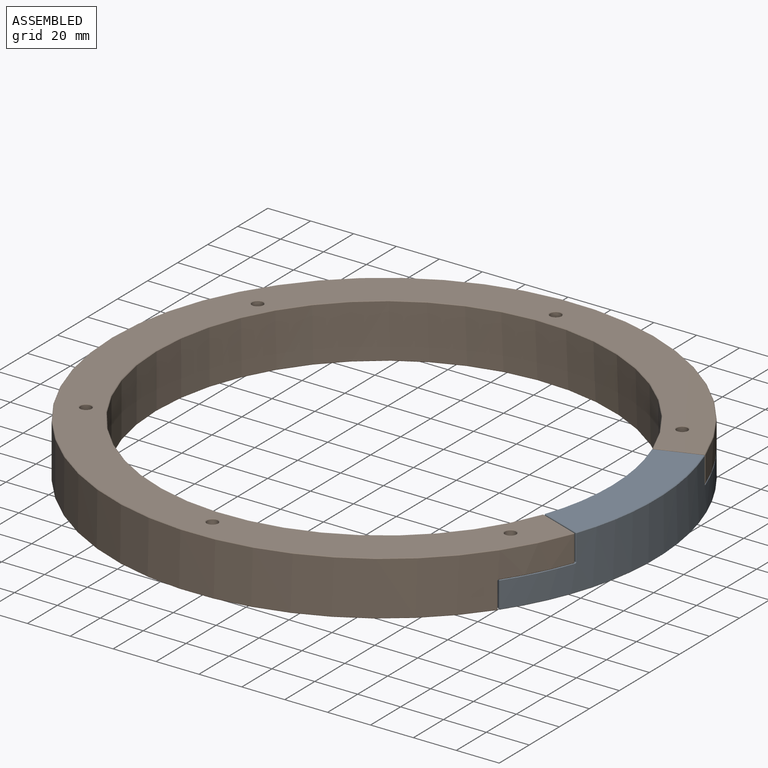
[diagram: assembled view]
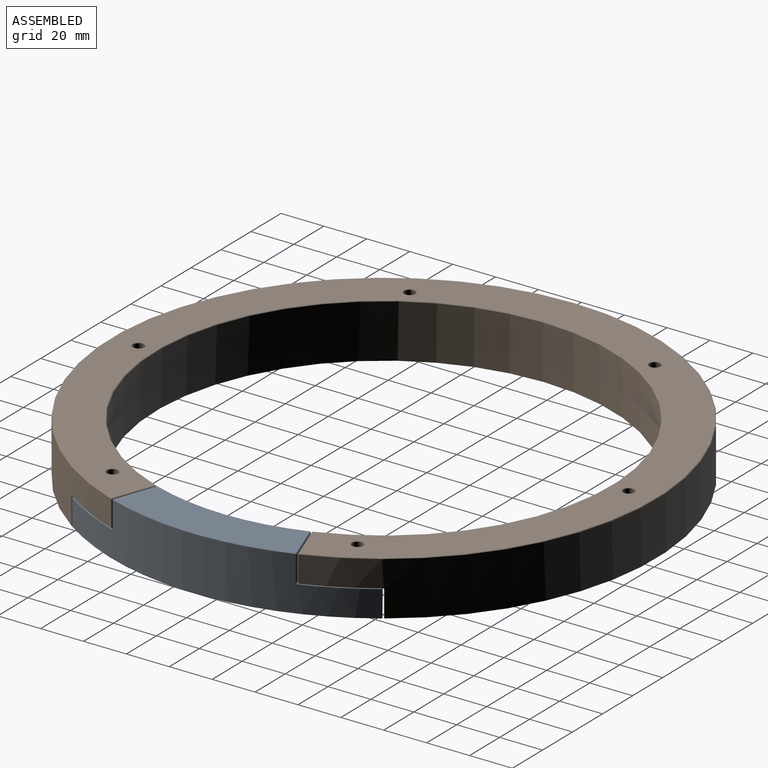
[diagram: assembled view, second angle]
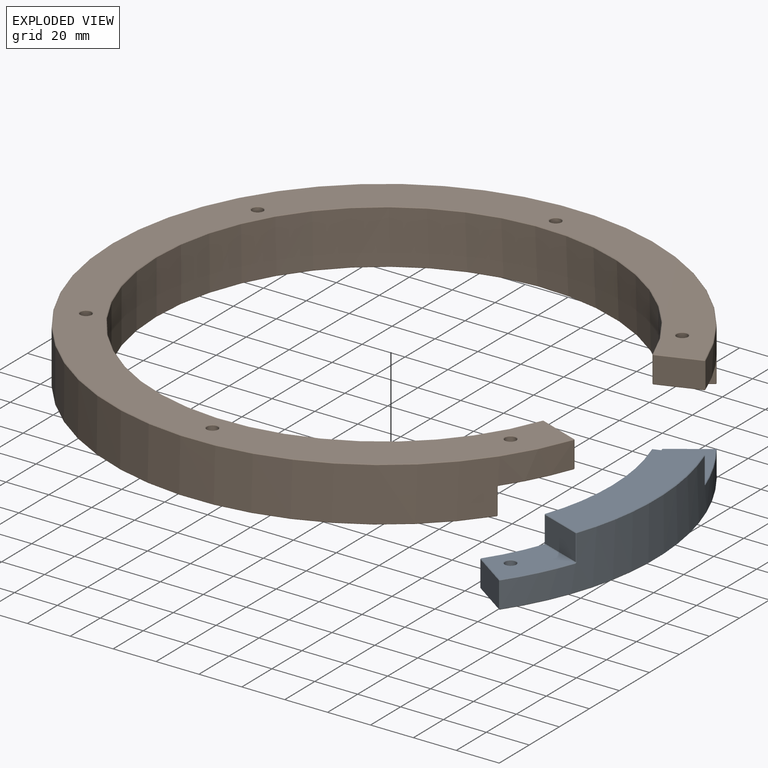
[diagram: exploded view]
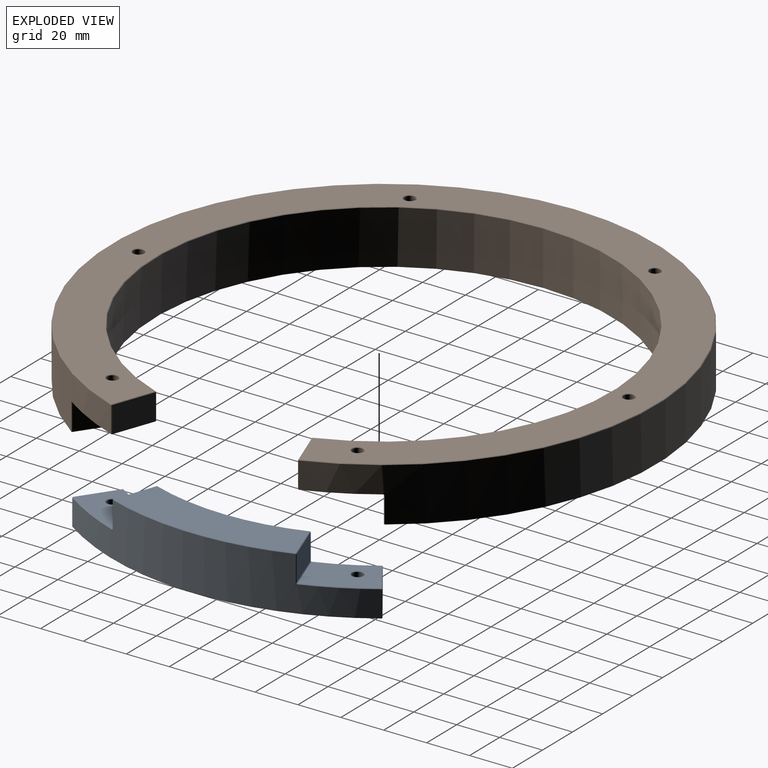
[diagram: exploded view, second angle]
ASSEMBLY  parts=2 mates=3
PART A: 56 faces, bbox 39.7x144.5x25.4 mm
  f0: plane 85.18x26.61mm, normal (0,0,-1), area 1632.1mm2, adj f35,f36,f45,f46
  f1: cylinder r=2.55mm len=12.19mm, axis (0,0,-1), area 195.5mm2, adj f53,f54
  f2: cylinder r=2.55mm len=12.19mm, axis (0,0,-1), area 195.5mm2, adj f52,f55
  f3: cylinder r=106.05mm len=120.47mm, axis (0,0,-1), area 2484.4mm2, adj f19,f24,f29,f30,f34,f40,f45,f48
  f4: cylinder r=127mm len=144.36mm, axis (0,0,-1), area 2977.7mm2, adj f12,f16,f17,f21,f26,f27,f36,f37
  f5: plane 144.07x39.26mm, normal (0,0,1), area 2830.1mm2, adj f17,f18,f28,f29,f54,f55
  f6: plane 16.8x12.19mm, normal (-0.57,0.82,0), area 249.3mm2, adj f27,f28,f39,f40
  f7: plane 16.8x12.19mm, normal (-0.57,-0.82,0), area 249.3mm2, adj f12,f15,f18,f19
  f8: plane 19.24x12.19mm, normal (-0.34,0.94,0), area 249.3mm2, adj f37,f46,f47,f51
  f9: plane 35.88x31.72mm, normal (0,0,-1), area 588.6mm2, adj f38,f39,f47,f48,f53
  f10: plane 19.24x12.19mm, normal (-0.34,-0.94,0), area 249.3mm2, adj f25,f26,f34,f35
  f11: plane 35.88x31.72mm, normal (0,0,-1), area 588.6mm2, adj f15,f16,f24,f25,f52
  f12: plane 12.19x0.35mm, normal (0.18,-0.98,0), area 4.4mm2, adj f4,f7,f13,f14
  f13: plane 0.35x0.25mm, normal (0.15,-0.8,-0.58), area 0.1mm2, adj f12,f15,f16
  f14: plane 0.35x0.25mm, normal (0.15,-0.8,0.58), area 0.1mm2, adj f12,f17,f18
  f15: plane 16.95x11.86mm, normal (-0.4,-0.58,-0.71), area 7.3mm2, adj f7,f11,f13,f20
  f16: cone r=127mm half-angle=45deg, axis (0,0,1), area 11.7mm2, adj f4,f11,f13,f21
  f17: cone r=126.75mm half-angle=45deg, axis (0,0,-1), area 55.1mm2, adj f4,f5,f14,f22
  f18: plane 16.95x11.86mm, normal (-0.4,-0.58,0.71), area 7.3mm2, adj f5,f7,f14,f23
  f19: plane 12.19x0.35mm, normal (-0.98,-0.18,0), area 4.4mm2, adj f3,f7,f20,f23
  f20: plane 0.35x0.25mm, normal (-0.8,-0.15,-0.58), area 0.1mm2, adj f15,f19,f24
  f21: bspline ~0.51x0.48mm, area 0.2mm2, adj f4,f16,f25,f26
  f22: plane 0.35x0.25mm, normal (0.15,0.8,0.58), area 0.1mm2, adj f17,f27,f28
  f23: plane 0.35x0.25mm, normal (-0.8,-0.15,0.58), area 0.1mm2, adj f18,f19,f29
  f24: cone r=106.3mm half-angle=45deg, axis (0,0,-1), area 9.8mm2, adj f3,f11,f20,f30
  f25: plane 19.33x7.15mm, normal (-0.24,-0.67,-0.71), area 7.3mm2, adj f10,f11,f21,f30
  f26: plane 12.19x0.33mm, normal (0.43,-0.9,0), area 4.4mm2, adj f4,f10,f21,f31
  f27: plane 12.19x0.35mm, normal (0.18,0.98,0), area 4.4mm2, adj f4,f6,f22,f32
  f28: plane 16.95x11.86mm, normal (-0.4,0.58,0.71), area 7.3mm2, adj f5,f6,f22,f33
  f29: cone r=106.05mm half-angle=45deg, axis (0,0,1), area 46.1mm2, adj f3,f5,f23,f33
  f30: bspline ~0.56x0.51mm, area 0.2mm2, adj f3,f24,f25,f34
  f31: plane 0.33x0.25mm, normal (0.35,-0.74,-0.58), area 0.1mm2, adj f26,f35,f36
  f32: plane 0.35x0.25mm, normal (0.15,0.8,-0.58), area 0.1mm2, adj f27,f38,f39
  f33: plane 0.35x0.25mm, normal (-0.8,0.15,0.58), area 0.1mm2, adj f28,f29,f40
  f34: plane 12.19x0.32mm, normal (-0.9,-0.43,0), area 4.4mm2, adj f3,f10,f30,f41
  f35: plane 19.33x7.15mm, normal (-0.24,-0.67,-0.71), area 7.3mm2, adj f0,f10,f31,f41
  f36: cone r=127mm half-angle=45deg, axis (0,0,1), area 31.2mm2, adj f0,f4,f31,f42
  f37: plane 12.19x0.33mm, normal (0.43,0.9,0), area 4.4mm2, adj f4,f8,f42,f43
  f38: cone r=127mm half-angle=45deg, axis (0,0,1), area 11.7mm2, adj f4,f9,f32,f43
  f39: plane 16.95x11.86mm, normal (-0.4,0.58,-0.71), area 7.3mm2, adj f6,f9,f32,f44
  f40: plane 12.19x0.35mm, normal (-0.98,0.18,0), area 4.4mm2, adj f3,f6,f33,f44
  f41: plane 0.32x0.25mm, normal (-0.74,-0.35,-0.58), area 0.1mm2, adj f34,f35,f45
  f42: plane 0.33x0.25mm, normal (0.35,0.74,-0.58), area 0.1mm2, adj f36,f37,f46
  f43: bspline ~0.51x0.48mm, area 0.2mm2, adj f4,f37,f38,f47
  f44: plane 0.35x0.25mm, normal (-0.8,0.15,-0.58), area 0.1mm2, adj f39,f40,f48
  f45: cone r=106.3mm half-angle=45deg, axis (0,0,-1), area 26.1mm2, adj f0,f3,f41,f49
  f46: plane 19.33x7.15mm, normal (-0.24,0.67,-0.71), area 7.3mm2, adj f0,f8,f42,f49
  f47: plane 19.33x7.15mm, normal (-0.24,0.67,-0.71), area 7.3mm2, adj f8,f9,f43,f50
  f48: cone r=106.3mm half-angle=45deg, axis (0,0,-1), area 9.8mm2, adj f3,f9,f44,f50
  f49: plane 0.32x0.25mm, normal (-0.74,0.35,-0.58), area 0.1mm2, adj f45,f46,f51
  f50: bspline ~0.56x0.51mm, area 0.2mm2, adj f3,f47,f48,f51
  f51: plane 12.19x0.32mm, normal (-0.9,0.43,0), area 4.4mm2, adj f3,f8,f49,f50
  f52: cone r=2.81mm half-angle=45deg, axis (0,0,-1), area 6mm2, adj f2,f11
  f53: cone r=2.81mm half-angle=45deg, axis (0,0,-1), area 6mm2, adj f1,f9
  f54: cone r=2.81mm half-angle=45deg, axis (0,0,1), area 6mm2, adj f1,f5
  f55: cone r=2.81mm half-angle=45deg, axis (0,0,1), area 6mm2, adj f2,f5
PART B: 68 faces, bbox 246.3x254x25.4 mm
  f0: cylinder r=106.05mm len=212.09mm, axis (0,0,-1), area 14025.2mm2, adj f16,f18,f20,f21,f30,f31,f35,f40
  f1: cylinder r=127mm len=254mm, axis (0,0,-1), area 16799mm2, adj f23,f27,f28,f33,f38,f44,f45,f49
  f2: plane 253.49x245.76mm, normal (0,0,1), area 13147.7mm2, adj f42,f43,f51,f52,f62,f63,f64,f65
  f3: cylinder r=2.55mm len=12.19mm, axis (0,0,-1), area 195.5mm2, adj f56,f62
  f4: cylinder r=2.55mm len=12.19mm, axis (0,0,-1), area 195.5mm2, adj f57,f63
  f5: cylinder r=2.55mm len=24.89mm, axis (0,0,-1), area 399.2mm2, adj f58,f64
  f6: cylinder r=2.55mm len=24.89mm, axis (0,0,-1), area 399.2mm2, adj f59,f65
  f7: cylinder r=2.55mm len=24.89mm, axis (0,0,-1), area 399.2mm2, adj f60,f66
  f8: plane 253.49x230.42mm, normal (0,0,-1), area 11949.7mm2, adj f19,f20,f28,f29,f58,f59,f60,f61
  f9: cylinder r=2.55mm len=24.89mm, axis (0,0,-1), area 399.2mm2, adj f61,f67
  f10: plane 19.21x12.19mm, normal (0.34,0.94,0), area 249.3mm2, adj f31,f32,f43,f44
  f11: plane 19.21x12.19mm, normal (0.34,-0.94,0), area 249.3mm2, adj f41,f50,f51,f55
  f12: plane 35.9x31.79mm, normal (0,0,-1), area 588.6mm2, adj f39,f40,f49,f50,f56
  f13: plane 16.75x12.19mm, normal (0.57,-0.82,0), area 249.3mm2, adj f29,f30,f38,f39
  f14: plane 16.75x12.19mm, normal (0.57,0.82,0), area 249.3mm2, adj f16,f19,f22,f23
  f15: plane 35.9x31.79mm, normal (0,0,-1), area 588.6mm2, adj f21,f22,f32,f33,f57
  f16: plane 12.19x0.35mm, normal (-0.17,0.99,0), area 4.4mm2, adj f0,f14,f17,f18
  f17: plane 0.35x0.25mm, normal (-0.14,0.8,-0.58), area 0.1mm2, adj f16,f19,f20
  f18: bspline ~0.51x0.5mm, area 0.2mm2, adj f0,f16,f21,f22
  f19: plane 16.9x11.94mm, normal (0.41,0.58,-0.71), area 7.3mm2, adj f8,f14,f17,f24
  f20: cone r=106.3mm half-angle=45deg, axis (0,0,-1), area 192.9mm2, adj f0,f8,f17,f25
  f21: cone r=106.3mm half-angle=45deg, axis (0,0,-1), area 9.8mm2, adj f0,f15,f18,f26
  f22: plane 16.9x11.94mm, normal (0.41,0.58,-0.71), area 7.3mm2, adj f14,f15,f18,f27
  f23: plane 12.19x0.35mm, normal (0.98,0.17,0), area 4.4mm2, adj f1,f14,f24,f27
  f24: plane 0.35x0.25mm, normal (0.8,0.14,-0.58), area 0.1mm2, adj f19,f23,f28
  f25: plane 0.35x0.25mm, normal (-0.14,-0.8,-0.58), area 0.1mm2, adj f20,f29,f30
  f26: plane 0.33x0.25mm, normal (-0.34,0.74,-0.58), area 0.1mm2, adj f21,f31,f32
  f27: bspline ~0.56x0.51mm, area 0.2mm2, adj f1,f22,f23,f33
  f28: cone r=127mm half-angle=45deg, axis (0,0,1), area 230.5mm2, adj f1,f8,f24,f34
  f29: plane 16.9x11.94mm, normal (0.41,-0.58,-0.71), area 7.3mm2, adj f8,f13,f25,f34
  f30: plane 12.19x0.35mm, normal (-0.17,-0.99,0), area 4.4mm2, adj f0,f13,f25,f35
  f31: plane 12.19x0.33mm, normal (-0.42,0.91,0), area 4.4mm2, adj f0,f10,f26,f36
  f32: plane 19.3x7.23mm, normal (0.24,0.66,-0.71), area 7.3mm2, adj f10,f15,f26,f37
  f33: cone r=127mm half-angle=45deg, axis (0,0,1), area 11.7mm2, adj f1,f15,f27,f37
  f34: plane 0.35x0.25mm, normal (0.8,-0.14,-0.58), area 0.1mm2, adj f28,f29,f38
  f35: bspline ~0.51x0.5mm, area 0.2mm2, adj f0,f30,f39,f40
  f36: plane 0.33x0.25mm, normal (-0.34,0.74,0.58), area 0.1mm2, adj f31,f42,f43
  f37: plane 0.33x0.25mm, normal (0.74,0.34,-0.58), area 0.1mm2, adj f32,f33,f44
  f38: plane 12.19x0.35mm, normal (0.98,-0.17,0), area 4.4mm2, adj f1,f13,f34,f45
  f39: plane 16.9x11.94mm, normal (0.41,-0.58,-0.71), area 7.3mm2, adj f12,f13,f35,f45
  f40: cone r=106.3mm half-angle=45deg, axis (0,0,-1), area 9.8mm2, adj f0,f12,f35,f46
  f41: plane 12.19x0.33mm, normal (-0.42,-0.91,0), area 4.4mm2, adj f0,f11,f46,f47
  f42: cone r=106.05mm half-angle=45deg, axis (0,0,1), area 212.8mm2, adj f0,f2,f36,f47
  f43: plane 19.3x7.23mm, normal (0.24,0.66,0.71), area 7.3mm2, adj f2,f10,f36,f48
  f44: plane 12.19x0.33mm, normal (0.91,0.42,0), area 4.4mm2, adj f1,f10,f37,f48
  f45: bspline ~0.57x0.51mm, area 0.2mm2, adj f1,f38,f39,f49
  f46: plane 0.33x0.25mm, normal (-0.34,-0.74,-0.58), area 0.1mm2, adj f40,f41,f50
  f47: plane 0.33x0.25mm, normal (-0.34,-0.74,0.58), area 0.1mm2, adj f41,f42,f51
  f48: plane 0.33x0.25mm, normal (0.74,0.34,0.58), area 0.1mm2, adj f43,f44,f52
  f49: cone r=127mm half-angle=45deg, axis (0,0,1), area 11.7mm2, adj f1,f12,f45,f53
  f50: plane 19.3x7.23mm, normal (0.24,-0.66,-0.71), area 7.3mm2, adj f11,f12,f46,f53
  f51: plane 19.3x7.23mm, normal (0.24,-0.66,0.71), area 7.3mm2, adj f2,f11,f47,f54
  f52: cone r=126.75mm half-angle=45deg, axis (0,0,-1), area 254.4mm2, adj f1,f2,f48,f54
  f53: plane 0.33x0.25mm, normal (0.74,-0.34,-0.58), area 0.1mm2, adj f49,f50,f55
  f54: plane 0.33x0.25mm, normal (0.74,-0.34,0.58), area 0.1mm2, adj f51,f52,f55
  f55: plane 12.19x0.33mm, normal (0.91,-0.42,0), area 4.4mm2, adj f1,f11,f53,f54
  f56: cone r=2.81mm half-angle=45deg, axis (0,0,-1), area 6mm2, adj f3,f12
  f57: cone r=2.81mm half-angle=45deg, axis (0,0,-1), area 6mm2, adj f4,f15
  f58: cone r=2.55mm half-angle=45deg, axis (0,0,-1), area 6mm2, adj f5,f8
  f59: cone r=2.55mm half-angle=45deg, axis (0,0,-1), area 6mm2, adj f6,f8
  f60: cone r=2.55mm half-angle=45deg, axis (0,0,-1), area 6mm2, adj f7,f8
  f61: cone r=2.55mm half-angle=45deg, axis (0,0,-1), area 6mm2, adj f8,f9
  f62: cone r=2.81mm half-angle=45deg, axis (0,0,1), area 6mm2, adj f2,f3
  f63: cone r=2.81mm half-angle=45deg, axis (0,0,1), area 6mm2, adj f2,f4
  f64: cone r=2.81mm half-angle=45deg, axis (0,0,1), area 6mm2, adj f2,f5
  f65: cone r=2.81mm half-angle=45deg, axis (0,0,1), area 6mm2, adj f2,f6
  f66: cone r=2.81mm half-angle=45deg, axis (0,0,1), area 6mm2, adj f2,f7
  f67: cone r=2.81mm half-angle=45deg, axis (0,0,1), area 6mm2, adj f2,f9
PLACE A rot(axis=(1,0,0),180deg) t=(-57.01,16.16,17.99)mm
PLACE B t=(-57.01,16.16,-7.41)mm
MATE cylindrical A.f3 <-> B.f0  axis (0,0,1) through (-57.01,16.16,5.29)mm
MATE planar A.f9 <-> B.f15  axis (0,0,1) through (46.76,-37.03,5.29)mm
MATE slider A.f2 <-> B.f3  axis (0,0,1) through (41.98,73.31,-7.15)mm
